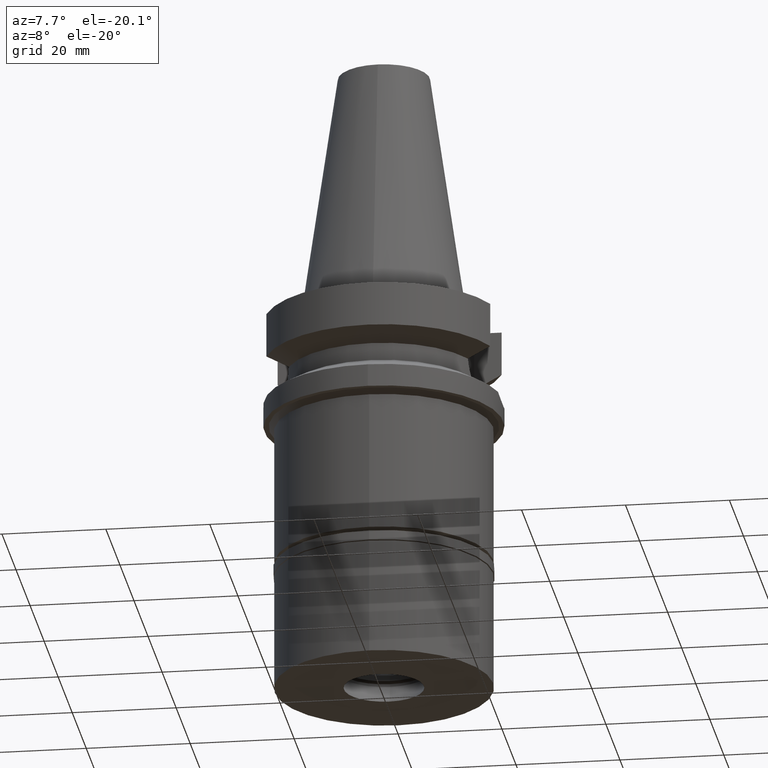
[diagram: clean part render]
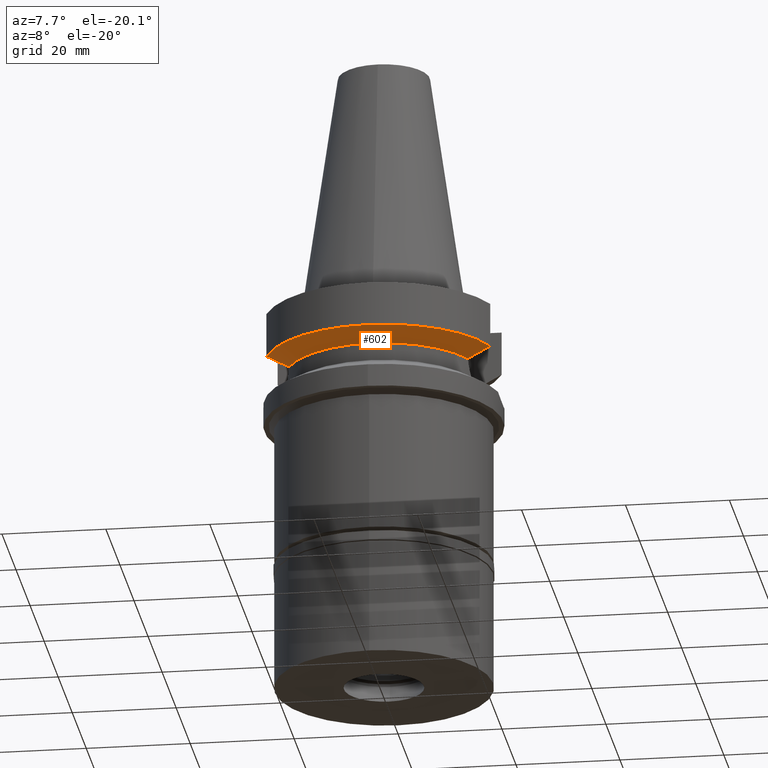
[diagram: same view with one face highlighted and labeled with its STEP entity id]
A machine part, auxiliary view. The second image highlights one B-rep face of the part: STEP entity #602.
In plain terms, the highlighted conical surface has half-angle 60 deg.
Its self-contained STEP definition (entity closure, byte-faithful):
#6 = CARTESIAN_POINT ( 'NONE',  ( 18.30417677519795916, -8.050000009833846448, -11.30245973939780235 ) ) ;
#30 = CARTESIAN_POINT ( 'NONE',  ( 18.96736186693999926, -8.050001277873001015, -10.94999977540000025 ) ) ;
#80 = CARTESIAN_POINT ( 'NONE',  ( 18.96736186693999926, -8.050001277873001015, -10.94999977540000025 ) ) ;
#89 = CARTESIAN_POINT ( 'NONE',  ( 19.78176446227738339, -8.050001299918164932, -10.51717305795229151 ) ) ;
#99 = EDGE_CURVE ( 'NONE', #859, #814, #108, .T. ) ;
#108 = B_SPLINE_CURVE_WITH_KNOTS ( 'NONE', 3,
 ( #550, #89, #1312, #831 ),
 .UNSPECIFIED., .F., .F.,
 ( 4, 4 ),
 ( 0.0000000000000000000, 1.000000000000000000 ),
 .UNSPECIFIED. ) ;
#271 = B_SPLINE_CURVE_WITH_KNOTS ( 'NONE', 3,
 ( #2992, #1149, #2294, #1826 ),
 .UNSPECIFIED., .F., .F.,
 ( 4, 4 ),
 ( 0.0000000000000000000, 1.000000000000000000 ),
 .UNSPECIFIED. ) ;
#288 = EDGE_CURVE ( 'NONE', #1589, #814, #2596, .T. ) ;
#320 = CARTESIAN_POINT ( 'NONE',  ( -20.64098922447568896, -8.049999155425181740, -10.05625859810780653 ) ) ;
#405 = EDGE_CURVE ( 'NONE', #859, #523, #1531, .T. ) ;
#449 = CARTESIAN_POINT ( 'NONE',  ( 0.0000000000000000000, 1.093341284896999988E-14, -11.87660944646999894 ) ) ;
#523 = VERTEX_POINT ( 'NONE', #1306 ) ;
#548 = CARTESIAN_POINT ( 'NONE',  ( -18.96738966519000158, -8.049994318072998922, -10.95000099924999937 ) ) ;
#550 = CARTESIAN_POINT ( 'NONE',  ( 18.96736186693999926, -8.050001277873001015, -10.94999977540000025 ) ) ;
#602 = ADVANCED_FACE ( 'NONE', ( #1762 ), #639, .T. ) ;
#637 = CARTESIAN_POINT ( 'NONE',  ( -17.23531622822000386, -7.996491147957000223, -11.87660607717000083 ) ) ;
#639 = CONICAL_SURFACE ( 'NONE', #2356, 21.00000000000000000, 1.047197551196400456 ) ;
#684 = VERTEX_POINT ( 'NONE', #2277 ) ;
#686 = EDGE_LOOP ( 'NONE', ( #1675, #2531, #2268, #2952, #1046, #892 ) ) ;
#694 = CARTESIAN_POINT ( 'NONE',  ( 21.54524309446999908, -8.050000000000999023, -9.567208369710998639 ) ) ;
#729 = DIRECTION ( 'NONE',  ( 0.0000000000000000000, 0.0000000000000000000, -1.000000000000000000 ) ) ;
#732 = AXIS2_PLACEMENT_3D ( 'NONE', #2523, #857, #1800 ) ;
#765 = CARTESIAN_POINT ( 'NONE',  ( -19.78174442231355812, -8.049991903457428322, -10.51718567404184412 ) ) ;
#804 = DIRECTION ( 'NONE',  ( 0.0000000000000000000, 1.000000000000000000, 0.0000000000000000000 ) ) ;
#814 = VERTEX_POINT ( 'NONE', #694 ) ;
#831 = CARTESIAN_POINT ( 'NONE',  ( 21.54524309446999908, -8.050000000000999023, -9.567208369710998639 ) ) ;
#857 = DIRECTION ( 'NONE',  ( 0.0000000000000000000, 0.0000000000000000000, 1.000000000000000000 ) ) ;
#859 = VERTEX_POINT ( 'NONE', #30 ) ;
#892 = ORIENTED_EDGE ( 'NONE', *, *, #2789, .T. ) ;
#1046 = ORIENTED_EDGE ( 'NONE', *, *, #288, .F. ) ;
#1149 = CARTESIAN_POINT ( 'NONE',  ( -17.72598979705365707, -8.027133611820948644, -11.61218201620178014 ) ) ;
#1153 = CARTESIAN_POINT ( 'NONE',  ( 17.72682660392796095, -8.027186146807153477, -11.61172867117429419 ) ) ;
#1276 = B_SPLINE_CURVE_WITH_KNOTS ( 'NONE', 3,
 ( #2902, #320, #765, #548 ),
 .UNSPECIFIED., .F., .F.,
 ( 4, 4 ),
 ( 0.0000000000000000000, 1.000000000000000000 ),
 .UNSPECIFIED. ) ;
#1306 = CARTESIAN_POINT ( 'NONE',  ( 17.23531135313000107, -7.996501749111999402, -11.87660739354000050 ) ) ;
#1312 = CARTESIAN_POINT ( 'NONE',  ( 20.64101735201231591, -8.050004185258069711, -10.05624233374762966 ) ) ;
#1468 = CIRCLE ( 'NONE', #2051, 19.00000000000000000 ) ;
#1531 = B_SPLINE_CURVE_WITH_KNOTS ( 'NONE', 3,
 ( #80, #6, #1153, #2190 ),
 .UNSPECIFIED., .F., .F.,
 ( 4, 4 ),
 ( 0.0000000000000000000, 1.000000000000000000 ),
 .UNSPECIFIED. ) ;
#1589 = VERTEX_POINT ( 'NONE', #2887 ) ;
#1675 = ORIENTED_EDGE ( 'NONE', *, *, #2550, .F. ) ;
#1762 = FACE_OUTER_BOUND ( 'NONE', #686, .T. ) ;
#1800 = DIRECTION ( 'NONE',  ( 0.0000000000000000000, -1.000000000000000000, 0.0000000000000000000 ) ) ;
#1826 = CARTESIAN_POINT ( 'NONE',  ( -18.96738966519000158, -8.049994318072998922, -10.95000099924999937 ) ) ;
#2051 = AXIS2_PLACEMENT_3D ( 'NONE', #449, #729, #2799 ) ;
#2190 = CARTESIAN_POINT ( 'NONE',  ( 17.23531135313000107, -7.996501749111999402, -11.87660739354000050 ) ) ;
#2232 = DIRECTION ( 'NONE',  ( 0.0000000000000000000, 0.0000000000000000000, 1.000000000000000000 ) ) ;
#2268 = ORIENTED_EDGE ( 'NONE', *, *, #405, .F. ) ;
#2277 = CARTESIAN_POINT ( 'NONE',  ( -18.96738966519000158, -8.049994318072998922, -10.95000099924999937 ) ) ;
#2294 = CARTESIAN_POINT ( 'NONE',  ( -18.30334760937699201, -8.049999956192326778, -11.30291655530038852 ) ) ;
#2356 = AXIS2_PLACEMENT_3D ( 'NONE', #2911, #2232, #804 ) ;
#2523 = CARTESIAN_POINT ( 'NONE',  ( 0.0000000000000000000, 1.093341284896999988E-14, -9.567208369710998639 ) ) ;
#2531 = ORIENTED_EDGE ( 'NONE', *, *, #2589, .F. ) ;
#2546 = VERTEX_POINT ( 'NONE', #637 ) ;
#2550 = EDGE_CURVE ( 'NONE', #2546, #684, #271, .T. ) ;
#2589 = EDGE_CURVE ( 'NONE', #523, #2546, #1468, .T. ) ;
#2596 = CIRCLE ( 'NONE', #732, 23.00000000000000000 ) ;
#2789 = EDGE_CURVE ( 'NONE', #1589, #684, #1276, .T. ) ;
#2799 = DIRECTION ( 'NONE',  ( 0.0000000000000000000, -1.000000000000000000, 0.0000000000000000000 ) ) ;
#2887 = CARTESIAN_POINT ( 'NONE',  ( -21.54524325238000060, -8.049999577366000025, -9.567211146628999074 ) ) ;
#2902 = CARTESIAN_POINT ( 'NONE',  ( -21.54524325238000060, -8.049999577366000025, -9.567211146628999074 ) ) ;
#2911 = CARTESIAN_POINT ( 'NONE',  ( 0.0000000000000000000, 1.093341284896999988E-14, -10.72190890808999875 ) ) ;
#2952 = ORIENTED_EDGE ( 'NONE', *, *, #99, .T. ) ;
#2992 = CARTESIAN_POINT ( 'NONE',  ( -17.23531622822000386, -7.996491147957000223, -11.87660607717000083 ) ) ;